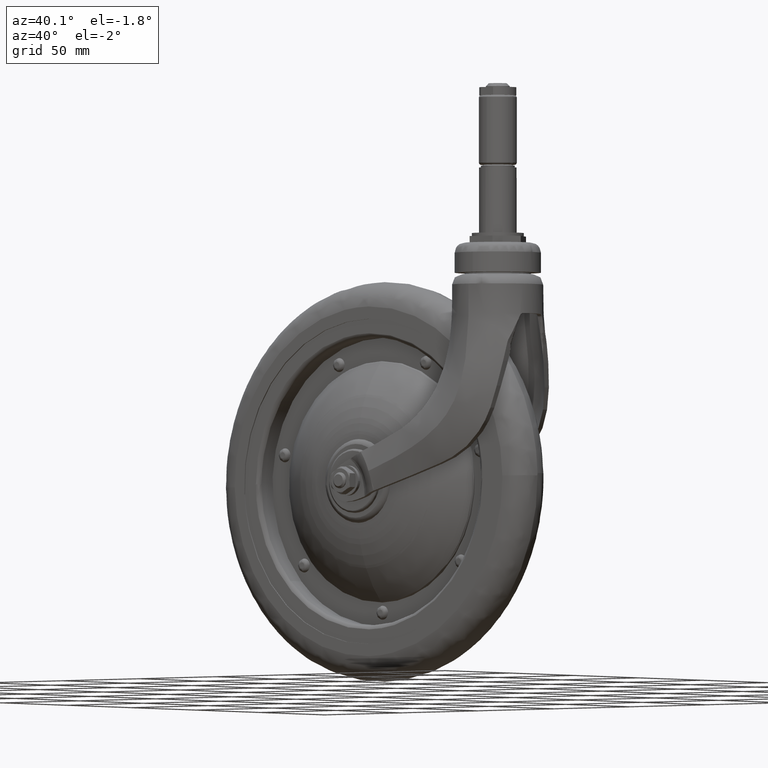
[diagram: clean part render]
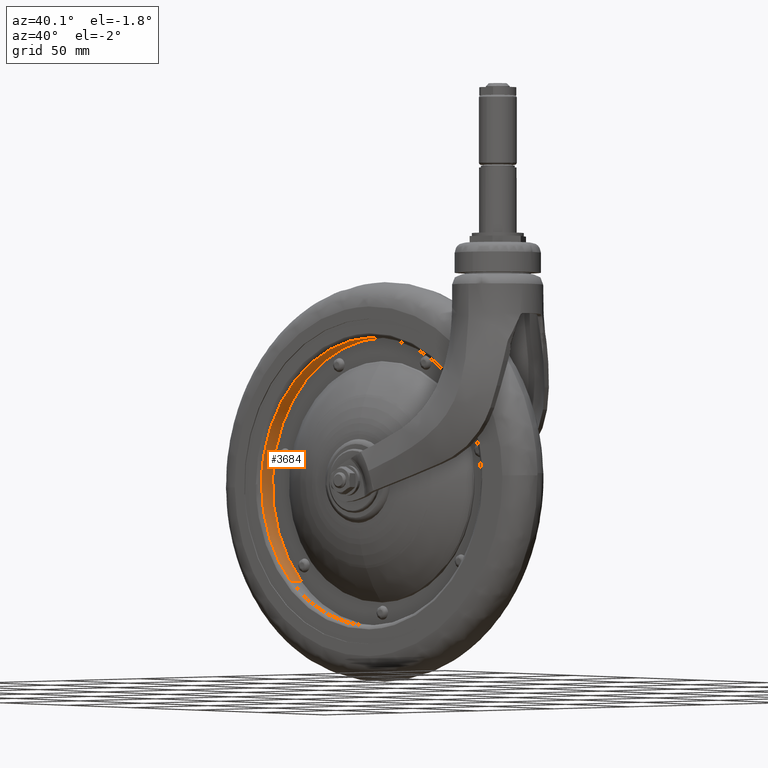
[diagram: same view with one face highlighted and labeled with its STEP entity id]
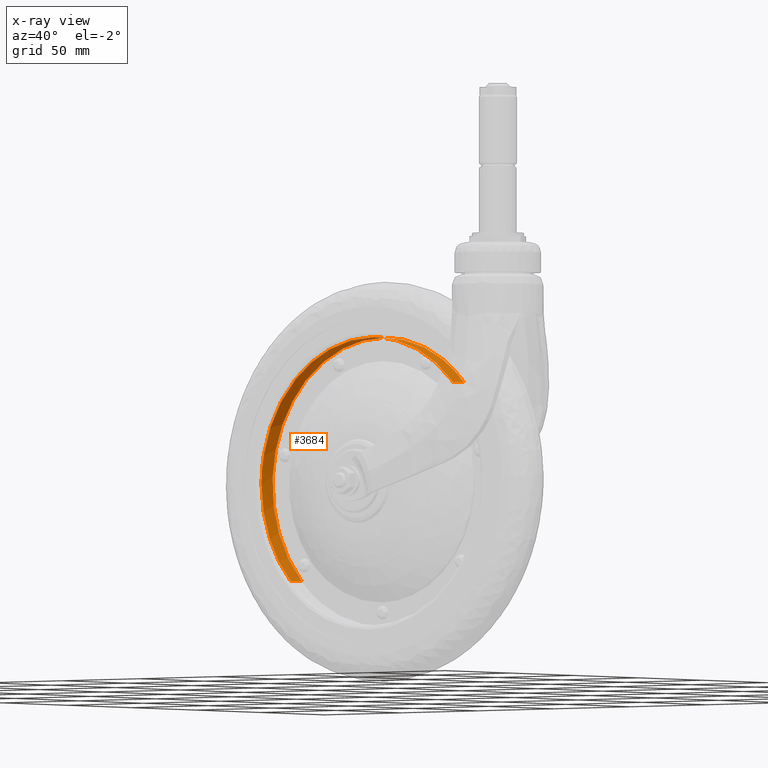
[diagram: x-ray of the same camera — body ghosted, the highlighted face saturated]
A machine part, auxiliary view. The second image highlights one B-rep face of the part: STEP entity #3684.
The next image is the same camera in x-ray: the body ghosted, the highlighted face saturated — about 0% of this face is hidden behind the body in this view.
In plain terms, the highlighted face is a freeform B-spline surface patch.
Its self-contained STEP definition (entity closure, byte-faithful):
#3436=CARTESIAN_POINT('',(-53.157845495538538,-1.500000000000000,-48.710186843333318));
#3437=VERTEX_POINT('',#3436);
#3438=CARTESIAN_POINT('',(0.0,-1.500000000000000,72.100200000000001));
#3439=VERTEX_POINT('',#3438);
#3440=CARTESIAN_POINT('',(-53.157845495538609,-1.500000000000000,-48.710186843333368));
#3441=CARTESIAN_POINT('',(-72.100200000000001,-1.500000000000000,-28.038232590550788));
#3442=CARTESIAN_POINT('',(-72.100200000000001,-1.500000000000000,0.0));
#3443=CARTESIAN_POINT('',(-72.100200000000001,-1.500000000000000,72.100200000000001));
#3444=CARTESIAN_POINT('',(0.0,-1.500000000000000,72.100200000000001));
#3452=(BOUNDED_CURVE()B_SPLINE_CURVE(2,(#3440,#3441,#3442,#3443,#3444),.UNSPECIFIED.,.F.,.U.)B_SPLINE_CURVE_WITH_KNOTS((3,2,3),(0.631584797287971,0.750000000000000,1.0),.UNSPECIFIED.)CURVE()GEOMETRIC_REPRESENTATION_ITEM()RATIONAL_B_SPLINE_CURVE((0.853959781624476,0.861267960484906,1.0,0.707106781186547,1.0))REPRESENTATION_ITEM(''));
#3453=EDGE_CURVE('',#3437,#3439,#3452,.T.);
#3470=CARTESIAN_POINT('',(53.157845495538517,-1.500000000000000,48.710186843333332));
#3471=VERTEX_POINT('',#3470);
#3487=CARTESIAN_POINT('',(0.0,-1.500000000000000,72.100200000000001));
#3488=CARTESIAN_POINT('',(31.724849095696175,-1.500000000000000,72.100200000000015));
#3489=CARTESIAN_POINT('',(53.157845495538574,-1.500000000000000,48.710186843333403));
#3497=(BOUNDED_CURVE()B_SPLINE_CURVE(2,(#3487,#3488,#3489),.UNSPECIFIED.,.F.,.U.)B_SPLINE_CURVE_WITH_KNOTS((3,3),(0.0,0.131584797287971),.UNSPECIFIED.)CURVE()GEOMETRIC_REPRESENTATION_ITEM()RATIONAL_B_SPLINE_CURVE((1.0,0.845838820701642,0.853959781624476))REPRESENTATION_ITEM(''));
#3498=EDGE_CURVE('',#3439,#3471,#3497,.T.);
#3557=CARTESIAN_POINT('',(53.157847455440717,-10.000000002079050,48.710184704474869));
#3558=VERTEX_POINT('',#3557);
#3572=CARTESIAN_POINT('',(53.157847455440717,-10.000000002079050,48.710184704474869));
#3573=CARTESIAN_POINT('',(53.157845495538517,-1.500000000000000,48.710186843333332));
#3574=QUASI_UNIFORM_CURVE('',1,(#3572,#3573),.UNSPECIFIED.,.F.,.U.);
#3575=EDGE_CURVE('',#3558,#3471,#3574,.T.);
#3579=CARTESIAN_POINT('',(-53.157847455440709,-10.000000002079050,-48.710184704474877));
#3580=VERTEX_POINT('',#3579);
#3581=CARTESIAN_POINT('',(-53.157847455440709,-10.000000002079050,-48.710184704474877));
#3582=CARTESIAN_POINT('',(-53.157845495538538,-1.500000000000000,-48.710186843333318));
#3583=QUASI_UNIFORM_CURVE('',1,(#3581,#3582),.UNSPECIFIED.,.F.,.U.);
#3584=EDGE_CURVE('',#3580,#3437,#3583,.T.);
#3617=CARTESIAN_POINT('',(-53.157843439477290,-10.212500004014119,-48.710189087130608));
#3618=CARTESIAN_POINT('',(-101.868032526607910,-10.212500004014123,4.447654352346682));
#3619=CARTESIAN_POINT('',(-48.710189087130608,-10.212500004014119,53.157843439477290));
#3620=CARTESIAN_POINT('',(4.447654352346682,-10.212500004014123,101.868032526607910));
#3621=CARTESIAN_POINT('',(53.157843439477290,-10.212500004014119,48.710189087130608));
#3622=CARTESIAN_POINT('',(-53.157843439477290,-1.282187499899646,-48.710189087130608));
#3623=CARTESIAN_POINT('',(-101.868032526607910,-1.282187499899646,4.447654352346682));
#3624=CARTESIAN_POINT('',(-48.710189087130608,-1.282187499899646,53.157843439477290));
#3625=CARTESIAN_POINT('',(4.447654352346682,-1.282187499899646,101.868032526607910));
#3626=CARTESIAN_POINT('',(53.157843439477290,-1.282187499899646,48.710189087130608));
#3634=(BOUNDED_SURFACE()B_SPLINE_SURFACE(2,1,((#3617,#3622),(#3618,#3623),(#3619,#3624),(#3620,#3625),(#3621,#3626)),.UNSPECIFIED.,.F.,.F.,.U.)B_SPLINE_SURFACE_WITH_KNOTS((3,2,3),(2,2),(0.0,119.459522759250500,238.919045518501010),(0.0,8.930312504114477),.UNSPECIFIED.)GEOMETRIC_REPRESENTATION_ITEM()RATIONAL_B_SPLINE_SURFACE(((1.0,1.0),(0.707106781186548,0.707106781186548),(1.0,1.0),(0.707106781186548,0.707106781186548),(1.0,1.0)))REPRESENTATION_ITEM('')SURFACE());
#3635=CARTESIAN_POINT('',(0.0,-10.0,72.100200000000001));
#3636=VERTEX_POINT('',#3635);
#3637=CARTESIAN_POINT('',(53.157847455440717,-10.000000002079046,48.710184704474884));
#3638=CARTESIAN_POINT('',(31.724850827039955,-10.000000000861588,72.100200000000001));
#3639=CARTESIAN_POINT('',(0.0,-10.0,72.100200000000001));
#3647=(BOUNDED_CURVE()B_SPLINE_CURVE(2,(#3637,#3638,#3639),.UNSPECIFIED.,.F.,.U.)B_SPLINE_CURVE_WITH_KNOTS((3,3),(0.368415196637997,0.500000000000000),.UNSPECIFIED.)CURVE()GEOMETRIC_REPRESENTATION_ITEM()RATIONAL_B_SPLINE_CURVE((0.853959782374213,0.845838813585471,1.0))REPRESENTATION_ITEM(''));
#3648=EDGE_CURVE('',#3558,#3636,#3647,.T.);
#3649=ORIENTED_EDGE('',*,*,#3648,.T.);
#3650=CARTESIAN_POINT('',(-72.100200000000001,-10.000000003916220,3.549659E-015));
#3651=VERTEX_POINT('',#3650);
#3652=CARTESIAN_POINT('',(0.0,-10.0,72.100200000000001));
#3653=CARTESIAN_POINT('',(-72.100200000000001,-10.000000001958108,72.100200000000001));
#3654=CARTESIAN_POINT('',(-72.100200000000001,-10.000000003916220,3.549659E-015));
#3662=(BOUNDED_CURVE()B_SPLINE_CURVE(2,(#3652,#3653,#3654),.UNSPECIFIED.,.F.,.U.)B_SPLINE_CURVE_WITH_KNOTS((3,3),(0.500000000000000,0.750000000000000),.UNSPECIFIED.)CURVE()GEOMETRIC_REPRESENTATION_ITEM()RATIONAL_B_SPLINE_CURVE((1.0,0.707106781186547,1.0))REPRESENTATION_ITEM(''));
#3663=EDGE_CURVE('',#3636,#3651,#3662,.T.);
#3664=ORIENTED_EDGE('',*,*,#3663,.T.);
#3665=CARTESIAN_POINT('',(-72.100200000000001,-10.000000003916220,3.549659E-015));
#3666=CARTESIAN_POINT('',(-72.100200000000001,-10.000000003154751,-28.038230920683564));
#3667=CARTESIAN_POINT('',(-53.157847455440901,-10.000000002078899,-48.710184704475054));
#3675=(BOUNDED_CURVE()B_SPLINE_CURVE(2,(#3665,#3666,#3667),.UNSPECIFIED.,.F.,.U.)B_SPLINE_CURVE_WITH_KNOTS((3,3),(0.750000000000000,0.868415196637997),.UNSPECIFIED.)CURVE()GEOMETRIC_REPRESENTATION_ITEM()RATIONAL_B_SPLINE_CURVE((1.0,0.861267967601076,0.853959782374213))REPRESENTATION_ITEM(''));
#3676=EDGE_CURVE('',#3651,#3580,#3675,.T.);
#3677=ORIENTED_EDGE('',*,*,#3676,.T.);
#3678=ORIENTED_EDGE('',*,*,#3584,.T.);
#3679=ORIENTED_EDGE('',*,*,#3453,.T.);
#3680=ORIENTED_EDGE('',*,*,#3498,.T.);
#3681=ORIENTED_EDGE('',*,*,#3575,.F.);
#3682=EDGE_LOOP('',(#3649,#3664,#3677,#3678,#3679,#3680,#3681));
#3683=FACE_OUTER_BOUND('',#3682,.T.);
#3684=ADVANCED_FACE('',(#3683),#3634,.F.);